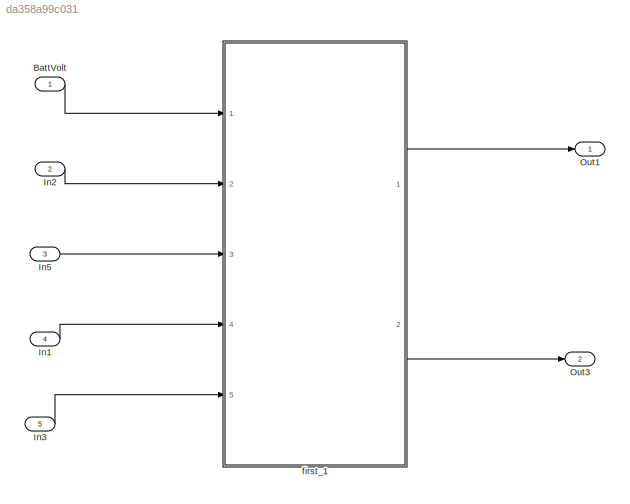
MODEL slx_da358a99c031
KIND model
CONFIG AbsTol = auto
CONFIG EnableMultiTasking = off
CONFIG FixedStep = auto
CONFIG MaxStep = auto
CONFIG MinStep = auto
CONFIG RelTol = 1e-3
CONFIG SampleTimeConstraint = Unconstrained
CONFIG SolverName = FixedStepAuto
CONFIG StartTime = 0.0
CONFIG StopTime = 10.0
BLOCK [Inport] BattVolt
BLOCK [Inport] In1
  Port = 4
BLOCK [Inport] In2
  Port = 2
BLOCK [Inport] In3
  Port = 5
BLOCK [Inport] In5
  Port = 3
BLOCK [Outport] Out1
BLOCK [Outport] Out3
  Port = 2
BLOCK [ModelReference] first_1
  ModelNameDialog = first_1
  ModelReferenceVersion = 1.4
  Ports = [5, 2]
LINE BattVolt:1 -> first_1:1
LINE In1:1 -> first_1:4
LINE In2:1 -> first_1:2
LINE In3:1 -> first_1:5
LINE In5:1 -> first_1:3
LINE first_1:1 -> Out1:1
LINE first_1:2 -> Out3:1
CHART Test Sequence states=3 transitions=3
  STATE_LABEL 'Run\n\n%% Initialize data outputs.\nBattVolt = 12;\nIn2 = 1;\nIn5 = 3;\nIn1 = 2;\nIn3 = 0;'
  STATE_LABEL 'step_1\nIn2 = 3;\nIn5 = 6;'
  STATE_LABEL 'step_2\nBattVolt = 11;'
